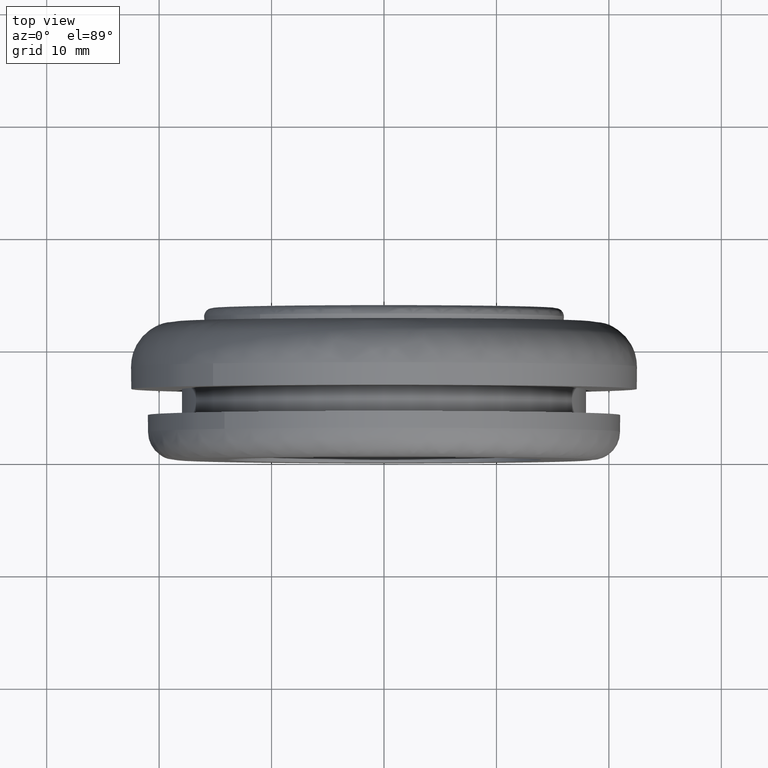
[diagram: clean part render]
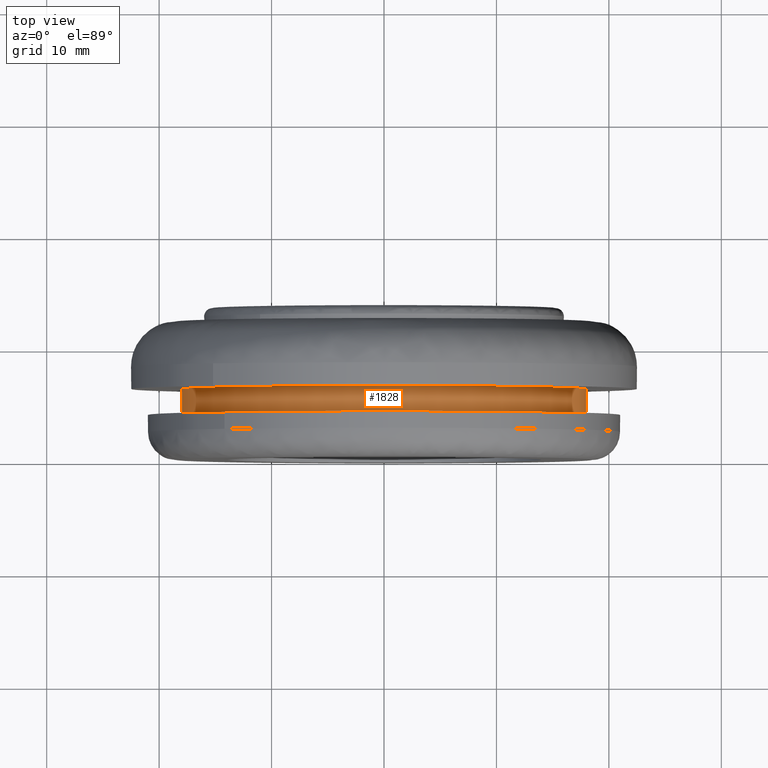
[diagram: same view with one face highlighted and labeled with its STEP entity id]
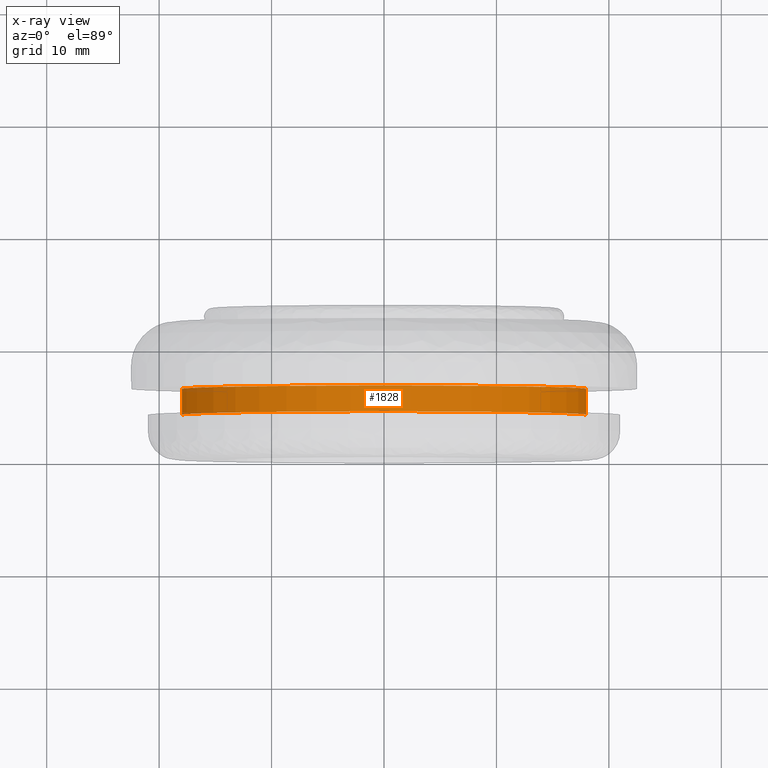
[diagram: x-ray of the same camera — body ghosted, the highlighted face saturated]
A machine part, top view. The second image highlights one B-rep face of the part: STEP entity #1828.
The next image is the same camera in x-ray: the body ghosted, the highlighted face saturated — about 0% of this face is hidden behind the body in this view.
In plain terms, the highlighted face is a freeform B-spline surface patch.
Its self-contained STEP definition (entity closure, byte-faithful):
#1695=CARTESIAN_POINT('',(0.0,6.299999999999890,18.0));
#1696=VERTEX_POINT('',#1695);
#1697=CARTESIAN_POINT('',(-17.966427061061420,6.299999999999890,1.098862438812192));
#1698=VERTEX_POINT('',#1697);
#1699=CARTESIAN_POINT('',(0.0,6.299999999999890,18.0));
#1700=CARTESIAN_POINT('',(-16.932719848378806,6.299999999999890,17.999999999999897));
#1701=CARTESIAN_POINT('',(-17.966427061061420,6.299999999999890,1.098862438812192));
#1709=(BOUNDED_CURVE()B_SPLINE_CURVE(2,(#1699,#1700,#1701),.UNSPECIFIED.,.F.,.U.)B_SPLINE_CURVE_WITH_KNOTS((3,3),(0.500000000000000,0.739333070504357),.UNSPECIFIED.)CURVE()GEOMETRIC_REPRESENTATION_ITEM()RATIONAL_B_SPLINE_CURVE((1.0,0.719603866445887,0.976072273700219))REPRESENTATION_ITEM(''));
#1710=EDGE_CURVE('',#1696,#1698,#1709,.T.);
#1712=CARTESIAN_POINT('',(17.966427061061420,6.299999999999890,-1.098862438812194));
#1713=VERTEX_POINT('',#1712);
#1714=CARTESIAN_POINT('',(17.966427061061420,6.299999999999890,-1.098862438812195));
#1715=CARTESIAN_POINT('',(17.999999999996504,6.299999999999890,-0.549944087163102));
#1716=CARTESIAN_POINT('',(17.999999999996561,6.299999999999890,2.134319E-013));
#1717=CARTESIAN_POINT('',(17.999999999998337,6.299999999999891,18.000000000000107));
#1718=CARTESIAN_POINT('',(0.0,6.299999999999890,18.0));
#1726=(BOUNDED_CURVE()B_SPLINE_CURVE(2,(#1714,#1715,#1716,#1717,#1718),.UNSPECIFIED.,.F.,.U.)B_SPLINE_CURVE_WITH_KNOTS((3,2,3),(0.239333070504357,0.250000000000000,0.500000000000000),.UNSPECIFIED.)CURVE()GEOMETRIC_REPRESENTATION_ITEM()RATIONAL_B_SPLINE_CURVE((0.976072273700219,0.987502914740660,1.0,0.707106781186547,1.0))REPRESENTATION_ITEM(''));
#1727=EDGE_CURVE('',#1713,#1696,#1726,.T.);
#1762=CARTESIAN_POINT('',(17.966426371593599,6.357499999999888,-1.098873711627426));
#1763=CARTESIAN_POINT('',(19.065300083221029,6.357499999999888,16.867552659966176));
#1764=CARTESIAN_POINT('',(1.098873711627426,6.357499999999888,17.966426371593599));
#1765=CARTESIAN_POINT('',(-16.867552659966176,6.357499999999888,19.065300083221029));
#1766=CARTESIAN_POINT('',(-17.966426371593599,6.357499999999888,1.098873711627425));
#1767=CARTESIAN_POINT('',(17.966426371593599,3.941062500000003,-1.098873711627426));
#1768=CARTESIAN_POINT('',(19.065300083221029,3.941062500000002,16.867552659966176));
#1769=CARTESIAN_POINT('',(1.098873711627426,3.941062500000003,17.966426371593599));
#1770=CARTESIAN_POINT('',(-16.867552659966176,3.941062500000002,19.065300083221029));
#1771=CARTESIAN_POINT('',(-17.966426371593599,3.941062500000003,1.098873711627425));
#1779=(BOUNDED_SURFACE()B_SPLINE_SURFACE(2,1,((#1762,#1767),(#1763,#1768),(#1764,#1769),(#1765,#1770),(#1766,#1771)),.UNSPECIFIED.,.F.,.F.,.U.)B_SPLINE_SURFACE_WITH_KNOTS((3,2,3),(2,2),(0.0,29.823376490862831,59.646752981725669),(0.0,2.416437499999885),.UNSPECIFIED.)GEOMETRIC_REPRESENTATION_ITEM()RATIONAL_B_SPLINE_SURFACE(((1.0,1.0),(0.707106781186548,0.707106781186548),(1.0,1.0),(0.707106781186548,0.707106781186548),(1.0,1.0)))REPRESENTATION_ITEM('')SURFACE());
#1780=CARTESIAN_POINT('',(17.966427069667350,4.000000000000311,-1.098862298103644));
#1781=VERTEX_POINT('',#1780);
#1782=CARTESIAN_POINT('',(0.0,4.0,18.0));
#1783=VERTEX_POINT('',#1782);
#1784=CARTESIAN_POINT('',(17.966427069667343,4.000000000000310,-1.098862298103644));
#1785=CARTESIAN_POINT('',(17.999999999996422,4.000000000000306,-0.549944016611563));
#1786=CARTESIAN_POINT('',(17.999999999996479,4.000000000000302,2.155865E-013));
#1787=CARTESIAN_POINT('',(17.999999999998298,4.000000000000146,18.000000000000107));
#1788=CARTESIAN_POINT('',(0.0,4.0,18.0));
#1796=(BOUNDED_CURVE()B_SPLINE_CURVE(2,(#1784,#1785,#1786,#1787,#1788),.UNSPECIFIED.,.F.,.U.)B_SPLINE_CURVE_WITH_KNOTS((3,2,3),(0.239333071855701,0.250000000000000,0.500000000000000),.UNSPECIFIED.)CURVE()GEOMETRIC_REPRESENTATION_ITEM()RATIONAL_B_SPLINE_CURVE((0.976072276596408,0.987502916323857,1.0,0.707106781186547,1.0))REPRESENTATION_ITEM(''));
#1797=EDGE_CURVE('',#1781,#1783,#1796,.T.);
#1798=ORIENTED_EDGE('',*,*,#1797,.F.);
#1799=CARTESIAN_POINT('',(17.966427061061420,6.299999999999890,-1.098862438812194));
#1800=CARTESIAN_POINT('',(17.966427069667350,4.000000000000311,-1.098862298103644));
#1801=QUASI_UNIFORM_CURVE('',1,(#1799,#1800),.UNSPECIFIED.,.F.,.U.);
#1802=EDGE_CURVE('',#1713,#1781,#1801,.T.);
#1803=ORIENTED_EDGE('',*,*,#1802,.F.);
#1804=ORIENTED_EDGE('',*,*,#1727,.T.);
#1805=ORIENTED_EDGE('',*,*,#1710,.T.);
#1806=CARTESIAN_POINT('',(-17.966427069667350,4.000000000000311,1.098862298103643));
#1807=VERTEX_POINT('',#1806);
#1808=CARTESIAN_POINT('',(-17.966427061061420,6.299999999999890,1.098862438812192));
#1809=CARTESIAN_POINT('',(-17.966427069667350,4.000000000000311,1.098862298103643));
#1810=QUASI_UNIFORM_CURVE('',1,(#1808,#1809),.UNSPECIFIED.,.F.,.U.);
#1811=EDGE_CURVE('',#1698,#1807,#1810,.T.);
#1812=ORIENTED_EDGE('',*,*,#1811,.T.);
#1813=CARTESIAN_POINT('',(0.0,4.0,18.0));
#1814=CARTESIAN_POINT('',(-16.932719981239387,4.000000000000155,17.999999999999890));
#1815=CARTESIAN_POINT('',(-17.966427069667350,4.000000000000310,1.098862298103643));
#1823=(BOUNDED_CURVE()B_SPLINE_CURVE(2,(#1813,#1814,#1815),.UNSPECIFIED.,.F.,.U.)B_SPLINE_CURVE_WITH_KNOTS((3,3),(0.500000000000000,0.739333071855701),.UNSPECIFIED.)CURVE()GEOMETRIC_REPRESENTATION_ITEM()RATIONAL_B_SPLINE_CURVE((1.0,0.719603864862690,0.976072276596408))REPRESENTATION_ITEM(''));
#1824=EDGE_CURVE('',#1783,#1807,#1823,.T.);
#1825=ORIENTED_EDGE('',*,*,#1824,.F.);
#1826=EDGE_LOOP('',(#1798,#1803,#1804,#1805,#1812,#1825));
#1827=FACE_OUTER_BOUND('',#1826,.T.);
#1828=ADVANCED_FACE('',(#1827),#1779,.T.);